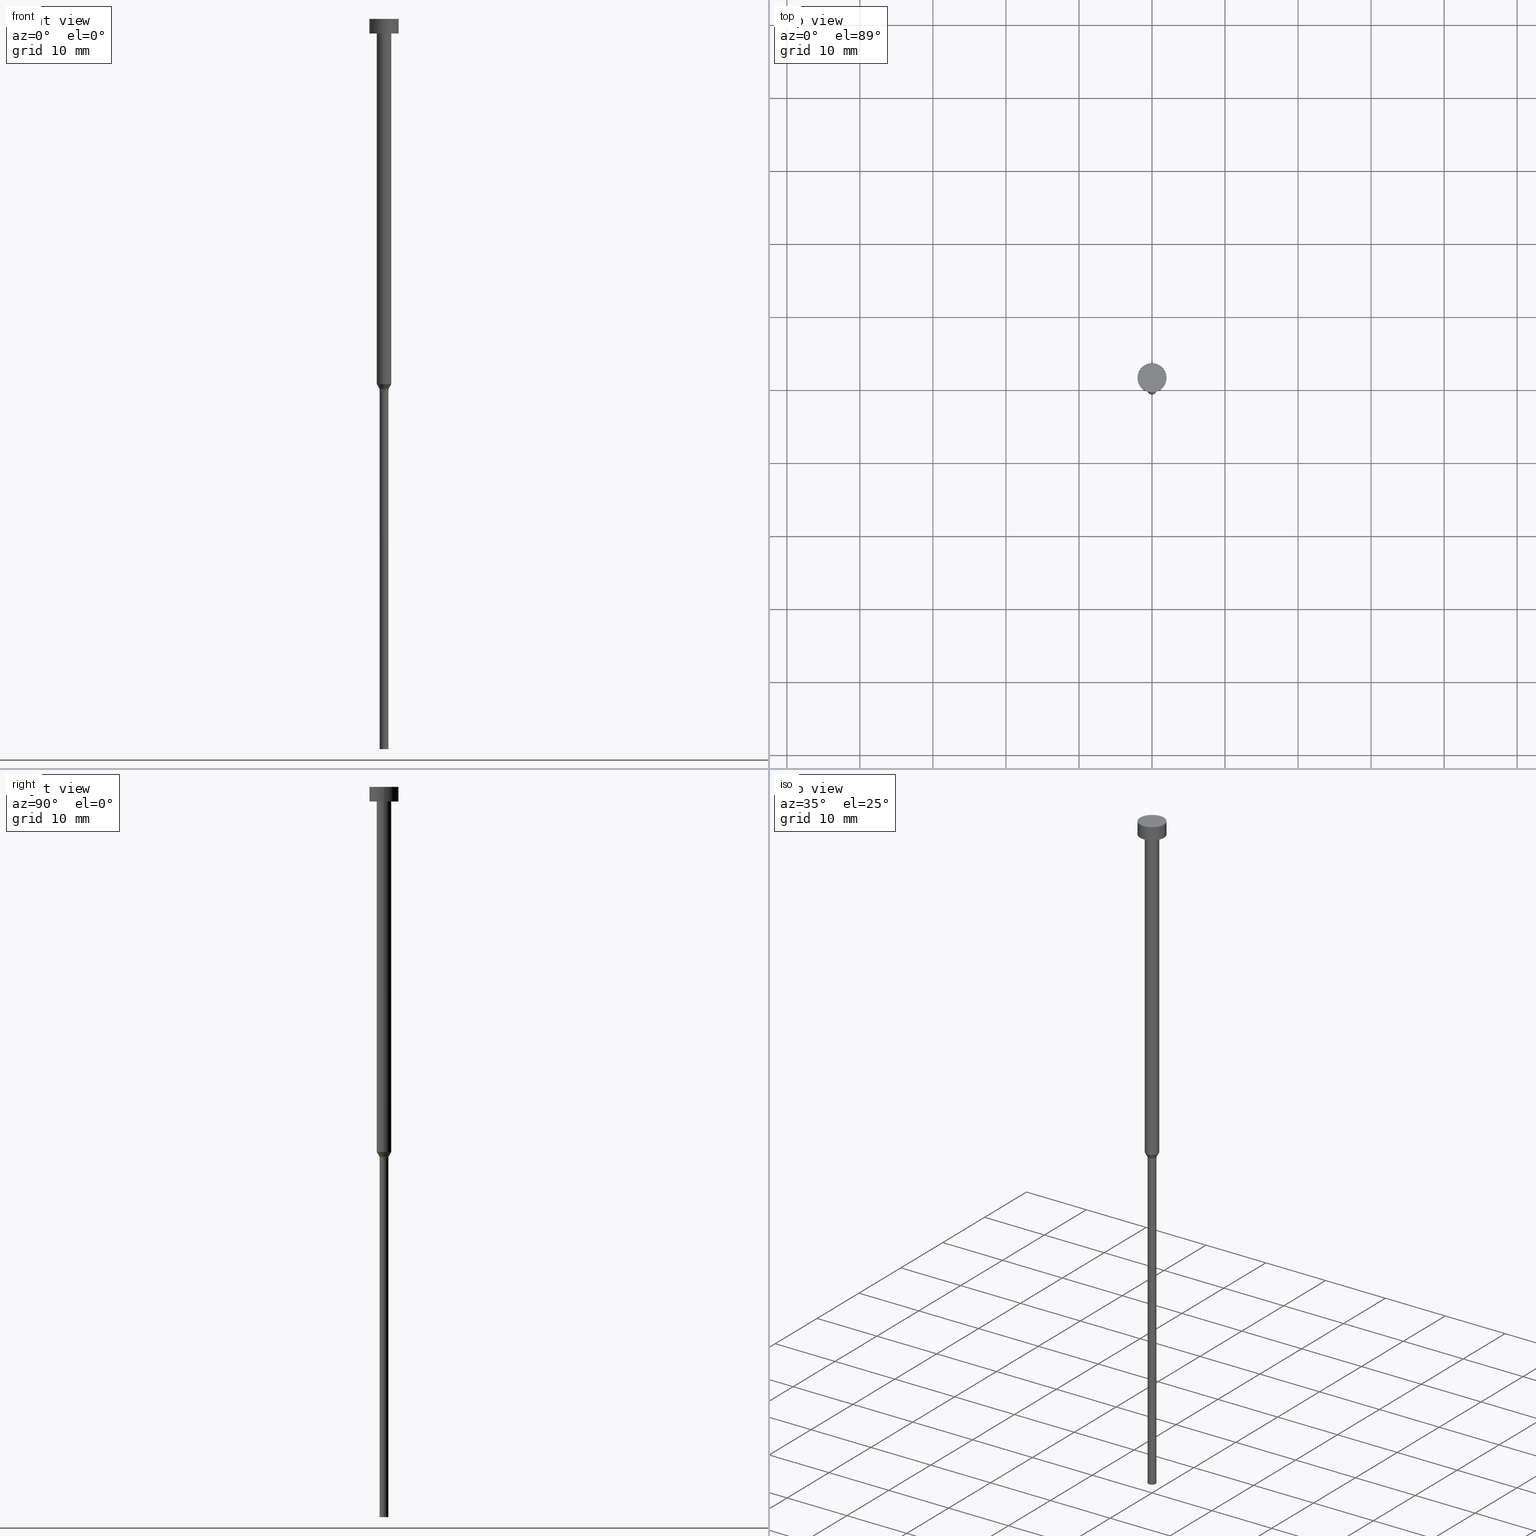
[diagram: canonical four-view strip — front | top / right | iso, engineering-drawing reading convention]
A machine part, canonical four-view strip (front | top / right | iso — engineering-drawing reading convention). The complete STEP part file that produces these views, byte-faithful:
ISO-10303-21;
HEADER;
FILE_DESCRIPTION (( 'STEP AP203' ),
    '1' );
FILE_NAME ('5d0a.STEP',
    '2023-02-13T12:40:38',
    ( '' ),
    ( '' ),
    'SwSTEP 2.0',
    'SolidWorks 2019',
    '' );
FILE_SCHEMA (( 'CONFIG_CONTROL_DESIGN' ));
ENDSEC;

DATA;
#1 = MANIFOLD_SOLID_BREP ( 'Rotovat1', #53 ) ;
#2 = ORIENTED_EDGE ( 'NONE', *, *, #307, .F. ) ;
#3 = CC_DESIGN_PERSON_AND_ORGANIZATION_ASSIGNMENT ( #130, #180, ( #320 ) ) ;
#4 = AXIS2_PLACEMENT_3D ( 'NONE', #68, #205, #351 ) ;
#5 = APPROVAL_DATE_TIME ( #308, #158 ) ;
#6 = PERSON ( 'NEUR�EN�', 'NEUR�EN�', 'NEUR�EN�', ('NEUR�EN�'), ('NEUR�EN�'), ('NEUR�EN�') ) ;
#7 = CARTESIAN_POINT ( 'NONE',  ( 1.000000000000003109, 0.000000000000000000, -50.00000000000000000 ) ) ;
#8 = CARTESIAN_POINT ( 'NONE',  ( 0.000000000000000000, -2.000000000000000000, -2.000000000000000444 ) ) ;
#9 = LINE ( 'NONE', #275, #221 ) ;
#10 = DIRECTION ( 'NONE',  ( 1.000000000000000000, 0.000000000000000000, 0.000000000000000000 ) ) ;
#11 = DIRECTION ( 'NONE',  ( -0.5000000000000018874, 6.123233995736789455E-17, 0.8660254037844375974 ) ) ;
#12 = DIRECTION ( 'NONE',  ( -0.000000000000000000, -0.000000000000000000, 1.000000000000000000 ) ) ;
#13 = EDGE_LOOP ( 'NONE', ( #44, #345, #156, #348 ) ) ;
#14 = EDGE_LOOP ( 'NONE', ( #227, #141, #71, #41 ) ) ;
#15 = VECTOR ( 'NONE', #11, 1000.000000000000000 ) ;
#16 = ORIENTED_EDGE ( 'NONE', *, *, #155, .T. ) ;
#17 = EDGE_LOOP ( 'NONE', ( #18, #174, #290, #153 ) ) ;
#18 = ORIENTED_EDGE ( 'NONE', *, *, #96, .F. ) ;
#19 = ORIENTED_EDGE ( 'NONE', *, *, #107, .F. ) ;
#20 = APPLICATION_PROTOCOL_DEFINITION ( 'international standard', 'config_control_design', 1994, #203 ) ;
#21 = CIRCLE ( 'NONE', #30, 0.5999999999999998668 ) ;
#22 = ADVANCED_FACE ( 'NONE', ( #103 ), #330, .T. ) ;
#23 = CALENDAR_DATE ( 2023, 13, 2 ) ;
#24 = VERTEX_POINT ( 'NONE', #207 ) ;
#25 = APPROVAL_STATUS ( 'not_yet_approved' ) ;
#26 = EDGE_LOOP ( 'NONE', ( #339, #80 ) ) ;
#27 = DIRECTION ( 'NONE',  ( -0.000000000000000000, -0.000000000000000000, 1.000000000000000000 ) ) ;
#28 = ORIENTED_EDGE ( 'NONE', *, *, #96, .T. ) ;
#29 = EDGE_CURVE ( 'NONE', #101, #201, #192, .T. ) ;
#30 = AXIS2_PLACEMENT_3D ( 'NONE', #181, #132, #57 ) ;
#31 = DIRECTION ( 'NONE',  ( 1.000000000000000000, 0.000000000000000000, 0.000000000000000000 ) ) ;
#32 = PLANE ( 'NONE',  #42 ) ;
#33 = DIRECTION ( 'NONE',  ( -0.000000000000000000, -0.000000000000000000, 1.000000000000000000 ) ) ;
#34 = PRODUCT_DEFINITION_FORMATION_WITH_SPECIFIED_SOURCE ( 'LIBOVOLN�', '', #341, .NOT_KNOWN. ) ;
#35 = LINE ( 'NONE', #138, #15 ) ;
#36 = ORGANIZATION ( 'NEUR�EN�', 'NEUR�EN�', '' ) ;
#37 = CARTESIAN_POINT ( 'NONE',  ( -0.5999999999999999778, 7.347880794884117764E-17, -50.69282032302755425 ) ) ;
#38 = EDGE_LOOP ( 'NONE', ( #115, #73, #253, #19 ) ) ;
#39 = PERSON_AND_ORGANIZATION ( #6, #36 ) ;
#40 = ORIENTED_EDGE ( 'NONE', *, *, #29, .F. ) ;
#41 = ORIENTED_EDGE ( 'NONE', *, *, #155, .F. ) ;
#42 = AXIS2_PLACEMENT_3D ( 'NONE', #8, #185, #188 ) ;
#43 = COORDINATED_UNIVERSAL_TIME_OFFSET ( 1, 0, .AHEAD. ) ;
#44 = ORIENTED_EDGE ( 'NONE', *, *, #124, .T. ) ;
#45 = ADVANCED_FACE ( 'NONE', ( #355 ), #269, .T. ) ;
#46 = CIRCLE ( 'NONE', #131, 2.000000000000000000 ) ;
#47 = PERSON_AND_ORGANIZATION_ROLE ( 'design_owner' ) ;
#48 = ORIENTED_EDGE ( 'NONE', *, *, #93, .T. ) ;
#49 = LOCAL_TIME ( 13, 40, 38.00000000000000000, #261 ) ;
#50 = CARTESIAN_POINT ( 'NONE',  ( 0.000000000000000000, 0.000000000000000000, -100.0000000000000000 ) ) ;
#51 = CIRCLE ( 'NONE', #64, 1.000000000000003109 ) ;
#52 = FACE_OUTER_BOUND ( 'NONE', #26, .T. ) ;
#53 = CLOSED_SHELL ( 'NONE', ( #246, #208, #274, #22, #301, #102, #183, #45, #78, #312, #213 ) ) ;
#54 = DIRECTION ( 'NONE',  ( 1.000000000000000000, 0.000000000000000000, 0.000000000000000000 ) ) ;
#55 = PLANE ( 'NONE',  #133 ) ;
#56 = DATE_TIME_ROLE ( 'classification_date' ) ;
#57 = DIRECTION ( 'NONE',  ( 1.000000000000000000, 0.000000000000000000, 0.000000000000000000 ) ) ;
#58 = DIRECTION ( 'NONE',  ( -0.000000000000000000, -0.000000000000000000, 1.000000000000000000 ) ) ;
#59 = CARTESIAN_POINT ( 'NONE',  ( 0.000000000000000000, 0.000000000000000000, 0.000000000000000000 ) ) ;
#60 =( NAMED_UNIT ( * ) SI_UNIT ( $, .STERADIAN. ) SOLID_ANGLE_UNIT ( ) );
#61 = DIRECTION ( 'NONE',  ( -0.000000000000000000, -0.000000000000000000, 1.000000000000000000 ) ) ;
#62 = DIRECTION ( 'NONE',  ( -0.000000000000000000, -0.000000000000000000, 1.000000000000000000 ) ) ;
#63 = FACE_OUTER_BOUND ( 'NONE', #263, .T. ) ;
#64 = AXIS2_PLACEMENT_3D ( 'NONE', #104, #328, #309 ) ;
#65 = DIRECTION ( 'NONE',  ( -0.000000000000000000, -0.000000000000000000, 1.000000000000000000 ) ) ;
#66 = CIRCLE ( 'NONE', #271, 1.000000000000003553 ) ;
#67 = DIRECTION ( 'NONE',  ( -1.000000000000000000, 0.000000000000000000, -0.000000000000000000 ) ) ;
#68 = CARTESIAN_POINT ( 'NONE',  ( 0.000000000000000000, 0.000000000000000000, 0.000000000000000000 ) ) ;
#69 = CARTESIAN_POINT ( 'NONE',  ( -2.000000000000000000, 2.449293598294706414E-16, -2.000000000000000444 ) ) ;
#70 = PERSON_AND_ORGANIZATION ( #6, #36 ) ;
#71 = ORIENTED_EDGE ( 'NONE', *, *, #107, .T. ) ;
#72 = LOCAL_TIME ( 13, 40, 38.00000000000000000, #209 ) ;
#73 = ORIENTED_EDGE ( 'NONE', *, *, #189, .T. ) ;
#74 = CARTESIAN_POINT ( 'NONE',  ( 0.5999999999999999778, 0.000000000000000000, -50.69282032302755425 ) ) ;
#75 = PERSON_AND_ORGANIZATION_ROLE ( 'creator' ) ;
#76 = VERTEX_POINT ( 'NONE', #214 ) ;
#77 = ORIENTED_EDGE ( 'NONE', *, *, #268, .F. ) ;
#78 = ADVANCED_FACE ( 'NONE', ( #304, #52 ), #32, .T. ) ;
#79 = VECTOR ( 'NONE', #12, 1000.000000000000000 ) ;
#80 = ORIENTED_EDGE ( 'NONE', *, *, #147, .F. ) ;
#81 = CARTESIAN_POINT ( 'NONE',  ( 0.000000000000000000, 0.000000000000000000, -50.00000000000000000 ) ) ;
#82 = VECTOR ( 'NONE', #279, 1000.000000000000000 ) ;
#83 = CC_DESIGN_PERSON_AND_ORGANIZATION_ASSIGNMENT ( #39, #325, ( #34 ) ) ;
#84 = DIRECTION ( 'NONE',  ( 1.000000000000000000, 0.000000000000000000, 0.000000000000000000 ) ) ;
#85 = DIRECTION ( 'NONE',  ( -0.000000000000000000, -0.000000000000000000, 1.000000000000000000 ) ) ;
#86 = AXIS2_PLACEMENT_3D ( 'NONE', #88, #136, #67 ) ;
#87 = EDGE_CURVE ( 'NONE', #316, #201, #35, .T. ) ;
#88 = CARTESIAN_POINT ( 'NONE',  ( 0.000000000000000000, 0.000000000000000000, -100.0000000000000000 ) ) ;
#89 = CARTESIAN_POINT ( 'NONE',  ( 0.000000000000000000, 0.000000000000000000, 0.000000000000000000 ) ) ;
#90 = AXIS2_PLACEMENT_3D ( 'NONE', #50, #331, #84 ) ;
#91 = DIRECTION ( 'NONE',  ( -0.000000000000000000, -0.000000000000000000, 1.000000000000000000 ) ) ;
#92 = CONICAL_SURFACE ( 'NONE', #236, 1.000000000000003109, 0.5235987755983010361 ) ;
#93 = EDGE_CURVE ( 'NONE', #76, #250, #265, .T. ) ;
#94 = EDGE_LOOP ( 'NONE', ( #231, #28, #2, #319 ) ) ;
#95 = AXIS2_PLACEMENT_3D ( 'NONE', #81, #33, #217 ) ;
#96 = EDGE_CURVE ( 'NONE', #118, #316, #9, .T. ) ;
#97 = DIRECTION ( 'NONE',  ( 1.000000000000000000, 0.000000000000000000, 0.000000000000000000 ) ) ;
#98 = EDGE_LOOP ( 'NONE', ( #210, #128 ) ) ;
#99 = APPROVAL_DATE_TIME ( #125, #139 ) ;
#100 = EDGE_CURVE ( 'NONE', #118, #24, #21, .T. ) ;
#101 = VERTEX_POINT ( 'NONE', #7 ) ;
#102 = ADVANCED_FACE ( 'NONE', ( #182 ), #310, .T. ) ;
#103 = FACE_OUTER_BOUND ( 'NONE', #94, .T. ) ;
#104 = CARTESIAN_POINT ( 'NONE',  ( 0.000000000000000000, 0.000000000000000000, -50.00000000000000000 ) ) ;
#105 = ORIENTED_EDGE ( 'NONE', *, *, #322, .T. ) ;
#106 = FACE_OUTER_BOUND ( 'NONE', #233, .T. ) ;
#107 = EDGE_CURVE ( 'NONE', #101, #244, #292, .T. ) ;
#108 = CARTESIAN_POINT ( 'NONE',  ( 0.000000000000000000, 0.000000000000000000, 0.000000000000000000 ) ) ;
#109 = CYLINDRICAL_SURFACE ( 'NONE', #262, 1.000000000000003331 ) ;
#110 = DIRECTION ( 'NONE',  ( 1.000000000000000000, 0.000000000000000000, 0.000000000000000000 ) ) ;
#111 = DESIGN_CONTEXT ( 'detailed design', #159, 'design' ) ;
#112 = CARTESIAN_POINT ( 'NONE',  ( 1.000000000000003109, 0.000000000000000000, -50.00000000000000000 ) ) ;
#113 = CARTESIAN_POINT ( 'NONE',  ( 0.000000000000000000, 0.000000000000000000, -2.449293598294705921E-16 ) ) ;
#114 = CARTESIAN_POINT ( 'NONE',  ( 2.000000000000000000, 0.000000000000000000, 0.000000000000000000 ) ) ;
#115 = ORIENTED_EDGE ( 'NONE', *, *, #29, .T. ) ;
#116 =( LENGTH_UNIT ( ) NAMED_UNIT ( * ) SI_UNIT ( .MILLI., .METRE. ) );
#117 = ORIENTED_EDGE ( 'NONE', *, *, #152, .T. ) ;
#118 = VERTEX_POINT ( 'NONE', #122 ) ;
#119 = CARTESIAN_POINT ( 'NONE',  ( -1.000000000000003553, 1.224646799147357398E-16, -2.000000000000000444 ) ) ;
#120 = DATE_AND_TIME ( #167, #193 ) ;
#121 = CIRCLE ( 'NONE', #137, 2.000000000000000000 ) ;
#122 = CARTESIAN_POINT ( 'NONE',  ( -0.5999999999999998668, 7.347880794884117764E-17, -100.0000000000000000 ) ) ;
#123 = PERSON_AND_ORGANIZATION ( #6, #36 ) ;
#124 = EDGE_CURVE ( 'NONE', #340, #145, #173, .T. ) ;
#125 = DATE_AND_TIME ( #23, #49 ) ;
#126 = CC_DESIGN_PERSON_AND_ORGANIZATION_ASSIGNMENT ( #287, #47, ( #341 ) ) ;
#127 = APPROVAL_ROLE ( '' ) ;
#128 = ORIENTED_EDGE ( 'NONE', *, *, #100, .F. ) ;
#129 = APPROVAL_PERSON_ORGANIZATION ( #70, #336, #318 ) ;
#130 = PERSON_AND_ORGANIZATION ( #6, #36 ) ;
#131 = AXIS2_PLACEMENT_3D ( 'NONE', #134, #282, #245 ) ;
#132 = DIRECTION ( 'NONE',  ( -0.000000000000000000, -0.000000000000000000, 1.000000000000000000 ) ) ;
#133 = AXIS2_PLACEMENT_3D ( 'NONE', #175, #300, #338 ) ;
#134 = CARTESIAN_POINT ( 'NONE',  ( 0.000000000000000000, 0.000000000000000000, -2.449293598294705921E-16 ) ) ;
#135 = EDGE_CURVE ( 'NONE', #244, #171, #305, .T. ) ;
#136 = DIRECTION ( 'NONE',  ( 0.000000000000000000, 0.000000000000000000, -1.000000000000000000 ) ) ;
#137 = AXIS2_PLACEMENT_3D ( 'NONE', #170, #248, #31 ) ;
#138 = CARTESIAN_POINT ( 'NONE',  ( -1.000000000000003109, 1.224646799147356905E-16, -50.00000000000000000 ) ) ;
#139 = APPROVAL ( #230, 'NEUR�EN�' ) ;
#140 = ORIENTED_EDGE ( 'NONE', *, *, #307, .T. ) ;
#141 = ORIENTED_EDGE ( 'NONE', *, *, #268, .T. ) ;
#142 = CARTESIAN_POINT ( 'NONE',  ( 1.000000000000003331, 0.000000000000000000, 0.000000000000000000 ) ) ;
#143 = ORIENTED_EDGE ( 'NONE', *, *, #251, .T. ) ;
#144 = AXIS2_PLACEMENT_3D ( 'NONE', #252, #65, #247 ) ;
#145 = VERTEX_POINT ( 'NONE', #69 ) ;
#146 = DIRECTION ( 'NONE',  ( -0.000000000000000000, -0.000000000000000000, 1.000000000000000000 ) ) ;
#147 = EDGE_CURVE ( 'NONE', #145, #340, #121, .T. ) ;
#148 = CARTESIAN_POINT ( 'NONE',  ( 2.000000000000000000, 0.000000000000000000, -2.449293598294705921E-16 ) ) ;
#149 = ORIENTED_EDGE ( 'NONE', *, *, #87, .F. ) ;
#150 = AXIS2_PLACEMENT_3D ( 'NONE', #89, #194, #110 ) ;
#151 = APPROVAL_ROLE ( '' ) ;
#152 = EDGE_CURVE ( 'NONE', #197, #101, #285, .T. ) ;
#153 = ORIENTED_EDGE ( 'NONE', *, *, #251, .F. ) ;
#154 = CARTESIAN_POINT ( 'NONE',  ( 0.000000000000000000, 0.000000000000000000, -50.69282032302755425 ) ) ;
#155 = EDGE_CURVE ( 'NONE', #171, #244, #66, .T. ) ;
#156 = ORIENTED_EDGE ( 'NONE', *, *, #322, .F. ) ;
#157 = COORDINATED_UNIVERSAL_TIME_OFFSET ( 1, 0, .AHEAD. ) ;
#158 = APPROVAL ( #25, 'NEUR�EN�' ) ;
#159 = APPLICATION_CONTEXT ( 'configuration controlled 3d designs of mechanical parts and assemblies' ) ;
#160 = CYLINDRICAL_SURFACE ( 'NONE', #150, 2.000000000000000000 ) ;
#161 = DIRECTION ( 'NONE',  ( -0.000000000000000000, -0.000000000000000000, 1.000000000000000000 ) ) ;
#162 = CARTESIAN_POINT ( 'NONE',  ( 2.000000000000000000, 0.000000000000000000, -2.000000000000000444 ) ) ;
#163 = CARTESIAN_POINT ( 'NONE',  ( 0.5999999999999998668, 0.000000000000000000, 0.000000000000000000 ) ) ;
#164 = AXIS2_PLACEMENT_3D ( 'NONE', #242, #314, #10 ) ;
#165 = DIRECTION ( 'NONE',  ( -0.000000000000000000, -0.000000000000000000, 1.000000000000000000 ) ) ;
#166 = FACE_OUTER_BOUND ( 'NONE', #169, .T. ) ;
#167 = CALENDAR_DATE ( 2023, 13, 2 ) ;
#168 = ORIENTED_EDGE ( 'NONE', *, *, #147, .T. ) ;
#169 = EDGE_LOOP ( 'NONE', ( #149, #143, #117, #77 ) ) ;
#170 = CARTESIAN_POINT ( 'NONE',  ( 0.000000000000000000, 0.000000000000000000, -2.000000000000000444 ) ) ;
#171 = VERTEX_POINT ( 'NONE', #119 ) ;
#172 = CALENDAR_DATE ( 2023, 13, 2 ) ;
#173 = CIRCLE ( 'NONE', #243, 2.000000000000000000 ) ;
#174 = ORIENTED_EDGE ( 'NONE', *, *, #100, .T. ) ;
#175 = CARTESIAN_POINT ( 'NONE',  ( 0.000000000000000000, 0.000000000000000000, -1.224646799147352961E-16 ) ) ;
#176 = SECURITY_CLASSIFICATION_LEVEL ( 'unclassified' ) ;
#177 = DIRECTION ( 'NONE',  ( 1.000000000000000000, 0.000000000000000000, 0.000000000000000000 ) ) ;
#178 = AXIS2_PLACEMENT_3D ( 'NONE', #113, #62, #332 ) ;
#179 = CALENDAR_DATE ( 2023, 13, 2 ) ;
#180 = PERSON_AND_ORGANIZATION_ROLE ( 'classification_officer' ) ;
#181 = CARTESIAN_POINT ( 'NONE',  ( 0.000000000000000000, 0.000000000000000000, -100.0000000000000000 ) ) ;
#182 = FACE_OUTER_BOUND ( 'NONE', #17, .T. ) ;
#183 = ADVANCED_FACE ( 'NONE', ( #166 ), #92, .T. ) ;
#184 = CIRCLE ( 'NONE', #90, 0.5999999999999998668 ) ;
#185 = DIRECTION ( 'NONE',  ( 0.000000000000000000, 0.000000000000000000, -1.000000000000000000 ) ) ;
#186 = AXIS2_PLACEMENT_3D ( 'NONE', #302, #306, #235 ) ;
#187 = LOCAL_TIME ( 13, 40, 38.00000000000000000, #157 ) ;
#188 = DIRECTION ( 'NONE',  ( -1.000000000000000000, 0.000000000000000000, -0.000000000000000000 ) ) ;
#189 = EDGE_CURVE ( 'NONE', #201, #171, #257, .T. ) ;
#190 = PLANE ( 'NONE',  #86 ) ;
#191 = LINE ( 'NONE', #276, #315 ) ;
#192 = CIRCLE ( 'NONE', #186, 1.000000000000003109 ) ;
#193 = LOCAL_TIME ( 13, 40, 38.00000000000000000, #43 ) ;
#194 = DIRECTION ( 'NONE',  ( -0.000000000000000000, -0.000000000000000000, 1.000000000000000000 ) ) ;
#195 = ORIENTED_EDGE ( 'NONE', *, *, #93, .F. ) ;
#196 = CARTESIAN_POINT ( 'NONE',  ( 0.000000000000000000, 0.000000000000000000, -2.000000000000000444 ) ) ;
#197 = VERTEX_POINT ( 'NONE', #74 ) ;
#198 = CONICAL_SURFACE ( 'NONE', #95, 1.000000000000003109, 0.5235987755983010361 ) ;
#199 = APPROVAL_DATE_TIME ( #120, #336 ) ;
#200 = VECTOR ( 'NONE', #91, 1000.000000000000000 ) ;
#201 = VERTEX_POINT ( 'NONE', #349 ) ;
#202 = FACE_OUTER_BOUND ( 'NONE', #38, .T. ) ;
#203 = APPLICATION_CONTEXT ( 'configuration controlled 3d designs of mechanical parts and assemblies' ) ;
#204 = CC_DESIGN_DATE_AND_TIME_ASSIGNMENT ( #258, #232, ( #294 ) ) ;
#205 = DIRECTION ( 'NONE',  ( 0.000000000000000000, 0.000000000000000000, 1.000000000000000000 ) ) ;
#206 = EDGE_LOOP ( 'NONE', ( #140, #255, #40, #353 ) ) ;
#207 = CARTESIAN_POINT ( 'NONE',  ( 0.5999999999999998668, 0.000000000000000000, -100.0000000000000000 ) ) ;
#208 = ADVANCED_FACE ( 'NONE', ( #202 ), #109, .T. ) ;
#209 = COORDINATED_UNIVERSAL_TIME_OFFSET ( 1, 0, .AHEAD. ) ;
#210 = ORIENTED_EDGE ( 'NONE', *, *, #254, .F. ) ;
#211 = VECTOR ( 'NONE', #225, 1000.000000000000000 ) ;
#212 = CALENDAR_DATE ( 2023, 13, 2 ) ;
#213 = ADVANCED_FACE ( 'NONE', ( #106 ), #55, .T. ) ;
#214 = CARTESIAN_POINT ( 'NONE',  ( -2.000000000000000000, 2.449293598294706414E-16, -2.449293598294705921E-16 ) ) ;
#215 = DIRECTION ( 'NONE',  ( 1.000000000000000000, 0.000000000000000000, 0.000000000000000000 ) ) ;
#216 = DIRECTION ( 'NONE',  ( 1.000000000000000000, 0.000000000000000000, 0.000000000000000000 ) ) ;
#217 = DIRECTION ( 'NONE',  ( 1.000000000000000000, 0.000000000000000000, 0.000000000000000000 ) ) ;
#218 = PRODUCT_DEFINITION_SHAPE ( 'NONE', 'NONE',  #294 ) ;
#219 = DIRECTION ( 'NONE',  ( -0.000000000000000000, -0.000000000000000000, 1.000000000000000000 ) ) ;
#220 =( GEOMETRIC_REPRESENTATION_CONTEXT ( 3 ) GLOBAL_UNCERTAINTY_ASSIGNED_CONTEXT ( ( #241 ) ) GLOBAL_UNIT_ASSIGNED_CONTEXT ( ( #116, #311, #60 ) ) REPRESENTATION_CONTEXT ( 'NONE', 'WORKASPACE' ) );
#221 = VECTOR ( 'NONE', #85, 1000.000000000000000 ) ;
#222 = CARTESIAN_POINT ( 'NONE',  ( 1.000000000000003553, 0.000000000000000000, -2.000000000000000444 ) ) ;
#223 = MECHANICAL_CONTEXT ( 'NONE', #203, 'mechanical' ) ;
#224 = EDGE_LOOP ( 'NONE', ( #298, #16 ) ) ;
#225 = DIRECTION ( 'NONE',  ( -0.000000000000000000, -0.000000000000000000, 1.000000000000000000 ) ) ;
#226 = CARTESIAN_POINT ( 'NONE',  ( 0.000000000000000000, 0.000000000000000000, -50.00000000000000000 ) ) ;
#227 = ORIENTED_EDGE ( 'NONE', *, *, #189, .F. ) ;
#228 = AXIS2_PLACEMENT_3D ( 'NONE', #59, #161, #240 ) ;
#229 = APPROVAL_PERSON_ORGANIZATION ( #123, #139, #151 ) ;
#230 = APPROVAL_STATUS ( 'not_yet_approved' ) ;
#231 = ORIENTED_EDGE ( 'NONE', *, *, #254, .T. ) ;
#232 = DATE_TIME_ROLE ( 'creation_date' ) ;
#233 = EDGE_LOOP ( 'NONE', ( #105, #48 ) ) ;
#234 = PERSON_AND_ORGANIZATION ( #6, #36 ) ;
#235 = DIRECTION ( 'NONE',  ( 1.000000000000000000, 0.000000000000000000, 0.000000000000000000 ) ) ;
#236 = AXIS2_PLACEMENT_3D ( 'NONE', #226, #286, #97 ) ;
#237 = PERSON_AND_ORGANIZATION ( #6, #36 ) ;
#238 = DATE_AND_TIME ( #212, #187 ) ;
#239 = CC_DESIGN_APPROVAL ( #158, ( #320 ) ) ;
#240 = DIRECTION ( 'NONE',  ( 1.000000000000000000, 0.000000000000000000, 0.000000000000000000 ) ) ;
#241 = UNCERTAINTY_MEASURE_WITH_UNIT (LENGTH_MEASURE( 1.000000000000000082E-05 ), #116, 'distance_accuracy_value', 'NONE');
#242 = CARTESIAN_POINT ( 'NONE',  ( 0.000000000000000000, 0.000000000000000000, -50.69282032302755425 ) ) ;
#243 = AXIS2_PLACEMENT_3D ( 'NONE', #196, #256, #346 ) ;
#244 = VERTEX_POINT ( 'NONE', #222 ) ;
#245 = DIRECTION ( 'NONE',  ( 1.000000000000000000, 0.000000000000000000, 0.000000000000000000 ) ) ;
#246 = ADVANCED_FACE ( 'NONE', ( #343 ), #288, .T. ) ;
#247 = DIRECTION ( 'NONE',  ( 1.000000000000000000, 0.000000000000000000, 0.000000000000000000 ) ) ;
#248 = DIRECTION ( 'NONE',  ( -0.000000000000000000, -0.000000000000000000, 1.000000000000000000 ) ) ;
#249 = PRODUCT_RELATED_PRODUCT_CATEGORY ( 'detail', '', ( #341 ) ) ;
#250 = VERTEX_POINT ( 'NONE', #148 ) ;
#251 = EDGE_CURVE ( 'NONE', #316, #197, #277, .T. ) ;
#252 = CARTESIAN_POINT ( 'NONE',  ( 0.000000000000000000, 0.000000000000000000, 0.000000000000000000 ) ) ;
#253 = ORIENTED_EDGE ( 'NONE', *, *, #135, .F. ) ;
#254 = EDGE_CURVE ( 'NONE', #24, #118, #184, .T. ) ;
#255 = ORIENTED_EDGE ( 'NONE', *, *, #87, .T. ) ;
#256 = DIRECTION ( 'NONE',  ( -0.000000000000000000, -0.000000000000000000, 1.000000000000000000 ) ) ;
#257 = LINE ( 'NONE', #342, #200 ) ;
#258 = DATE_AND_TIME ( #172, #354 ) ;
#259 = AXIS2_PLACEMENT_3D ( 'NONE', #323, #327, #54 ) ;
#260 = CC_DESIGN_APPROVAL ( #336, ( #294 ) ) ;
#261 = COORDINATED_UNIVERSAL_TIME_OFFSET ( 1, 0, .AHEAD. ) ;
#262 = AXIS2_PLACEMENT_3D ( 'NONE', #333, #58, #216 ) ;
#263 = EDGE_LOOP ( 'NONE', ( #350, #168, #266, #195 ) ) ;
#264 = AXIS2_PLACEMENT_3D ( 'NONE', #154, #27, #215 ) ;
#265 = CIRCLE ( 'NONE', #178, 2.000000000000000000 ) ;
#266 = ORIENTED_EDGE ( 'NONE', *, *, #284, .T. ) ;
#267 = FACE_OUTER_BOUND ( 'NONE', #206, .T. ) ;
#268 = EDGE_CURVE ( 'NONE', #201, #101, #51, .T. ) ;
#269 = CYLINDRICAL_SURFACE ( 'NONE', #334, 1.000000000000003331 ) ;
#270 = CC_DESIGN_PERSON_AND_ORGANIZATION_ASSIGNMENT ( #321, #75, ( #294 ) ) ;
#271 = AXIS2_PLACEMENT_3D ( 'NONE', #293, #219, #296 ) ;
#272 = CC_DESIGN_APPROVAL ( #139, ( #34 ) ) ;
#273 = LINE ( 'NONE', #163, #347 ) ;
#274 = ADVANCED_FACE ( 'NONE', ( #267 ), #198, .T. ) ;
#275 = CARTESIAN_POINT ( 'NONE',  ( -0.5999999999999998668, 7.347880794884117764E-17, 0.000000000000000000 ) ) ;
#276 = CARTESIAN_POINT ( 'NONE',  ( -2.000000000000000000, 2.449293598294706414E-16, 0.000000000000000000 ) ) ;
#277 = CIRCLE ( 'NONE', #264, 0.5999999999999999778 ) ;
#278 = EDGE_CURVE ( 'NONE', #24, #197, #273, .T. ) ;
#279 = DIRECTION ( 'NONE',  ( 0.5000000000000018874, 0.000000000000000000, 0.8660254037844375974 ) ) ;
#280 = CIRCLE ( 'NONE', #164, 0.5999999999999999778 ) ;
#281 = AXIS2_PLACEMENT_3D ( 'NONE', #295, #146, #317 ) ;
#282 = DIRECTION ( 'NONE',  ( -0.000000000000000000, -0.000000000000000000, 1.000000000000000000 ) ) ;
#283 = APPROVAL_PERSON_ORGANIZATION ( #237, #158, #127 ) ;
#284 = EDGE_CURVE ( 'NONE', #340, #250, #335, .T. ) ;
#285 = LINE ( 'NONE', #112, #82 ) ;
#286 = DIRECTION ( 'NONE',  ( -0.000000000000000000, -0.000000000000000000, 1.000000000000000000 ) ) ;
#287 = PERSON_AND_ORGANIZATION ( #6, #36 ) ;
#288 = CYLINDRICAL_SURFACE ( 'NONE', #144, 2.000000000000000000 ) ;
#289 = CC_DESIGN_PERSON_AND_ORGANIZATION_ASSIGNMENT ( #234, #329, ( #34 ) ) ;
#290 = ORIENTED_EDGE ( 'NONE', *, *, #278, .T. ) ;
#291 = CC_DESIGN_SECURITY_CLASSIFICATION ( #320, ( #34 ) ) ;
#292 = LINE ( 'NONE', #142, #211 ) ;
#293 = CARTESIAN_POINT ( 'NONE',  ( 0.000000000000000000, 0.000000000000000000, -2.000000000000000444 ) ) ;
#294 = PRODUCT_DEFINITION ( 'NEZN�M�', '', #34, #111 ) ;
#295 = CARTESIAN_POINT ( 'NONE',  ( 0.000000000000000000, 0.000000000000000000, -2.000000000000000444 ) ) ;
#296 = DIRECTION ( 'NONE',  ( 1.000000000000000000, 0.000000000000000000, 0.000000000000000000 ) ) ;
#297 = COORDINATED_UNIVERSAL_TIME_OFFSET ( 1, 0, .AHEAD. ) ;
#298 = ORIENTED_EDGE ( 'NONE', *, *, #135, .T. ) ;
#299 = APPLICATION_PROTOCOL_DEFINITION ( 'international standard', 'config_control_design', 1994, #159 ) ;
#300 = DIRECTION ( 'NONE',  ( 0.000000000000000000, -0.000000000000000000, 1.000000000000000000 ) ) ;
#301 = ADVANCED_FACE ( 'NONE', ( #337 ), #190, .T. ) ;
#302 = CARTESIAN_POINT ( 'NONE',  ( 0.000000000000000000, 0.000000000000000000, -50.00000000000000000 ) ) ;
#303 = ADVANCED_BREP_SHAPE_REPRESENTATION ( '5d0a', ( #1, #4 ), #220 ) ;
#304 = FACE_BOUND ( 'NONE', #224, .T. ) ;
#305 = CIRCLE ( 'NONE', #281, 1.000000000000003553 ) ;
#306 = DIRECTION ( 'NONE',  ( -0.000000000000000000, -0.000000000000000000, 1.000000000000000000 ) ) ;
#307 = EDGE_CURVE ( 'NONE', #197, #316, #280, .T. ) ;
#308 = DATE_AND_TIME ( #179, #72 ) ;
#309 = DIRECTION ( 'NONE',  ( 1.000000000000000000, 0.000000000000000000, 0.000000000000000000 ) ) ;
#310 = CYLINDRICAL_SURFACE ( 'NONE', #228, 0.5999999999999998668 ) ;
#311 =( NAMED_UNIT ( * ) PLANE_ANGLE_UNIT ( ) SI_UNIT ( $, .RADIAN. ) );
#312 = ADVANCED_FACE ( 'NONE', ( #63 ), #160, .T. ) ;
#313 = EDGE_CURVE ( 'NONE', #145, #76, #191, .T. ) ;
#314 = DIRECTION ( 'NONE',  ( -0.000000000000000000, -0.000000000000000000, 1.000000000000000000 ) ) ;
#315 = VECTOR ( 'NONE', #165, 1000.000000000000000 ) ;
#316 = VERTEX_POINT ( 'NONE', #37 ) ;
#317 = DIRECTION ( 'NONE',  ( 1.000000000000000000, 0.000000000000000000, 0.000000000000000000 ) ) ;
#318 = APPROVAL_ROLE ( '' ) ;
#319 = ORIENTED_EDGE ( 'NONE', *, *, #278, .F. ) ;
#320 = SECURITY_CLASSIFICATION ( '', '', #176 ) ;
#321 = PERSON_AND_ORGANIZATION ( #6, #36 ) ;
#322 = EDGE_CURVE ( 'NONE', #250, #76, #46, .T. ) ;
#323 = CARTESIAN_POINT ( 'NONE',  ( 0.000000000000000000, 0.000000000000000000, 0.000000000000000000 ) ) ;
#324 = CC_DESIGN_DATE_AND_TIME_ASSIGNMENT ( #238, #56, ( #320 ) ) ;
#325 = PERSON_AND_ORGANIZATION_ROLE ( 'creator' ) ;
#326 = DIRECTION ( 'NONE',  ( -0.000000000000000000, -0.000000000000000000, 1.000000000000000000 ) ) ;
#327 = DIRECTION ( 'NONE',  ( -0.000000000000000000, -0.000000000000000000, 1.000000000000000000 ) ) ;
#328 = DIRECTION ( 'NONE',  ( -0.000000000000000000, -0.000000000000000000, 1.000000000000000000 ) ) ;
#329 = PERSON_AND_ORGANIZATION_ROLE ( 'design_supplier' ) ;
#330 = CYLINDRICAL_SURFACE ( 'NONE', #259, 0.5999999999999998668 ) ;
#331 = DIRECTION ( 'NONE',  ( -0.000000000000000000, -0.000000000000000000, 1.000000000000000000 ) ) ;
#332 = DIRECTION ( 'NONE',  ( 1.000000000000000000, 0.000000000000000000, 0.000000000000000000 ) ) ;
#333 = CARTESIAN_POINT ( 'NONE',  ( 0.000000000000000000, 0.000000000000000000, 0.000000000000000000 ) ) ;
#334 = AXIS2_PLACEMENT_3D ( 'NONE', #108, #326, #177 ) ;
#335 = LINE ( 'NONE', #114, #79 ) ;
#336 = APPROVAL ( #344, 'NEUR�EN�' ) ;
#337 = FACE_OUTER_BOUND ( 'NONE', #98, .T. ) ;
#338 = DIRECTION ( 'NONE',  ( 1.000000000000000000, 0.000000000000000000, 0.000000000000000000 ) ) ;
#339 = ORIENTED_EDGE ( 'NONE', *, *, #124, .F. ) ;
#340 = VERTEX_POINT ( 'NONE', #162 ) ;
#341 = PRODUCT ( '5d0a', '5d0a', '', ( #223 ) ) ;
#342 = CARTESIAN_POINT ( 'NONE',  ( -1.000000000000003331, 1.224646799147357151E-16, 0.000000000000000000 ) ) ;
#343 = FACE_OUTER_BOUND ( 'NONE', #13, .T. ) ;
#344 = APPROVAL_STATUS ( 'not_yet_approved' ) ;
#345 = ORIENTED_EDGE ( 'NONE', *, *, #313, .T. ) ;
#346 = DIRECTION ( 'NONE',  ( 1.000000000000000000, 0.000000000000000000, 0.000000000000000000 ) ) ;
#347 = VECTOR ( 'NONE', #61, 1000.000000000000000 ) ;
#348 = ORIENTED_EDGE ( 'NONE', *, *, #284, .F. ) ;
#349 = CARTESIAN_POINT ( 'NONE',  ( -1.000000000000003109, 1.224646799147356905E-16, -50.00000000000000000 ) ) ;
#350 = ORIENTED_EDGE ( 'NONE', *, *, #313, .F. ) ;
#351 = DIRECTION ( 'NONE',  ( 1.000000000000000000, 0.000000000000000000, 0.000000000000000000 ) ) ;
#352 = SHAPE_DEFINITION_REPRESENTATION ( #218, #303 ) ;
#353 = ORIENTED_EDGE ( 'NONE', *, *, #152, .F. ) ;
#354 = LOCAL_TIME ( 13, 40, 38.00000000000000000, #297 ) ;
#355 = FACE_OUTER_BOUND ( 'NONE', #14, .T. ) ;
ENDSEC;
END-ISO-10303-21;
